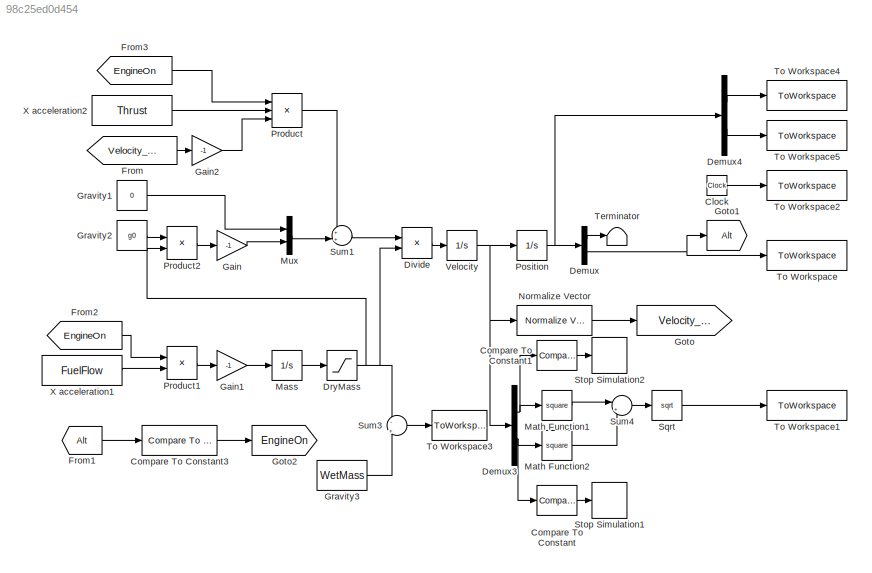
MODEL slx_98c25ed0d454
KIND model
CONFIG AbsTol = auto
CONFIG FixedStep = .1
CONFIG MaxStep = auto
CONFIG MinStep = auto
CONFIG RelTol = 1e-10
CONFIG SampleTimeConstraint = Unconstrained
CONFIG Solver = ode45
CONFIG SolverMode = Auto
CONFIG SolverName = ode45
CONFIG StartTime = 0.0
CONFIG StopTime = 10000
BLOCK [Clock] Clock
BLOCK [Reference] Compare To Constant  REF=simulink/Logic and Bit
Operations/Compare
To Constant
  OutDataTypeStr = boolean
  Ports = [1, 1]
  SourceBlock = simulink/Logic and Bit\nOperations/Compare\nTo Constant
  SourceType = Compare To Constant
  ZeroCross = on
  const = -0.01
  relop = >=
BLOCK [Reference] Compare To Constant1  REF=simulink/Logic and Bit
Operations/Compare
To Constant
  OutDataTypeStr = boolean
  Ports = [1, 1]
  SourceBlock = simulink/Logic and Bit\nOperations/Compare\nTo Constant
  SourceType = Compare To Constant
  ZeroCross = on
  const = 0.01
  relop = <=
BLOCK [Reference] Compare To Constant3  REF=simulink/Logic and Bit
Operations/Compare
To Constant
  OutDataTypeStr = boolean
  Ports = [1, 1]
  SourceBlock = simulink/Logic and Bit\nOperations/Compare\nTo Constant
  SourceType = Compare To Constant
  ZeroCross = on
  const = BurnStart
  relop = <=
BLOCK [Demux] Demux
  DisplayOption = bar
  Outputs = 2
  Ports = [1, 2]
BLOCK [Demux] Demux3
  DisplayOption = bar
  Outputs = 2
  Ports = [1, 2]
BLOCK [Demux] Demux4
  DisplayOption = bar
  Outputs = 2
  Ports = [1, 2]
BLOCK [Product] Divide
  InputSameDT = off
  Inputs = */
  OutDataTypeStr = Inherit: Inherit via internal rule
  Ports = [2, 1]
  RndMeth = Floor
  SaturateOnIntegerOverflow = off
BLOCK [Saturate] DryMass
  InputPortMap = u0
  LowerLimit = DryMass
  Ports = [1, 1]
  UpperLimit = inf
BLOCK [From] From
  GotoTag = Velocity_Vector
BLOCK [From] From1
  GotoTag = Alt
BLOCK [From] From2
  GotoTag = EngineOn
BLOCK [From] From3
  GotoTag = EngineOn
BLOCK [Gain] Gain
  Gain = -1
  OutDataTypeStr = Inherit: Inherit via internal rule
  ParamDataTypeStr = Inherit: Inherit via internal rule
  SaturateOnIntegerOverflow = off
BLOCK [Gain] Gain1
  Gain = -1
  OutDataTypeStr = Inherit: Inherit via internal rule
  ParamDataTypeStr = Inherit: Inherit via internal rule
  SaturateOnIntegerOverflow = off
BLOCK [Gain] Gain2
  Gain = -1
  OutDataTypeStr = Inherit: Inherit via internal rule
  ParamDataTypeStr = Inherit: Inherit via internal rule
  SaturateOnIntegerOverflow = off
BLOCK [Goto] Goto
  GotoTag = Velocity_Vector
BLOCK [Goto] Goto1
  GotoTag = Alt
BLOCK [Goto] Goto2
  GotoTag = EngineOn
BLOCK [Constant] Gravity1
  Value = 0
BLOCK [Constant] Gravity2
  Value = g0
BLOCK [Constant] Gravity3
  Value = WetMass
BLOCK [Integrator] Mass
  InitialCondition = WetMass
  Ports = [1, 1]
BLOCK [Math] Math Function1
  Operator = square
  Ports = [1, 1]
BLOCK [Math] Math Function2
  Operator = square
  Ports = [1, 1]
BLOCK [Mux] Mux
  DisplayOption = bar
  Inputs = 2
  Ports = [2, 1]
BLOCK [Reference] Normalize Vector  REF=vrlib/Utilities/Normalize Vector
  Ports = [1, 1]
  SourceBlock = vrlib/Utilities/Normalize Vector
  SourceType = Normalize Vector
  maxzero = 0
BLOCK [Integrator] Position
  InitialCondition = [0,StartingAlt]
  Ports = [1, 1]
BLOCK [Product] Product
  InputSameDT = off
  Inputs = 3
  OutDataTypeStr = Inherit: Inherit via internal rule
  Ports = [3, 1]
  RndMeth = Floor
  SaturateOnIntegerOverflow = off
BLOCK [Product] Product1
  InputSameDT = off
  OutDataTypeStr = Inherit: Inherit via internal rule
  Ports = [2, 1]
  RndMeth = Floor
  SaturateOnIntegerOverflow = off
BLOCK [Product] Product2
  InputSameDT = off
  OutDataTypeStr = Inherit: Inherit via internal rule
  Ports = [2, 1]
  RndMeth = Floor
  SaturateOnIntegerOverflow = off
BLOCK [Sqrt] Sqrt
BLOCK [Stop] Stop Simulation1
BLOCK [Stop] Stop Simulation2
BLOCK [Sum] Sum1
  IconShape = round
  InputSameDT = off
  Inputs = ++|
  OutDataTypeStr = Inherit: Inherit via internal rule
  Ports = [2, 1]
  SaturateOnIntegerOverflow = off
BLOCK [Sum] Sum3
  IconShape = round
  InputSameDT = off
  Inputs = -|+
  OutDataTypeStr = Inherit: Inherit via internal rule
  Ports = [2, 1]
  SaturateOnIntegerOverflow = off
BLOCK [Sum] Sum4
  IconShape = round
  InputSameDT = off
  Inputs = |++
  OutDataTypeStr = Inherit: Inherit via internal rule
  Ports = [2, 1]
  SaturateOnIntegerOverflow = off
BLOCK [Terminator] Terminator
BLOCK [ToWorkspace] To Workspace
  FixptAsFi = on
  MaxDataPoints = 1
  Ports = [1]
  SampleTime = -1
  Save2DSignal = 3-D array (concatenate along third dimension)
  VariableName = Final_Altitude
BLOCK [ToWorkspace] To Workspace1
  FixptAsFi = on
  MaxDataPoints = 1
  Ports = [1]
  SampleTime = -1
  Save2DSignal = 3-D array (concatenate along third dimension)
  VariableName = Final_Speed
BLOCK [ToWorkspace] To Workspace2
  FixptAsFi = on
  MaxDataPoints = 1
  Ports = [1]
  SampleTime = -1
  Save2DSignal = 3-D array (concatenate along third dimension)
  VariableName = BurnTime
BLOCK [ToWorkspace] To Workspace3
  FixptAsFi = on
  MaxDataPoints = 1
  Ports = [1]
  SampleTime = -1
  Save2DSignal = 3-D array (concatenate along third dimension)
  VariableName = FuelUse
BLOCK [ToWorkspace] To Workspace4
  FixptAsFi = on
  Ports = [1]
  SampleTime = -1
  Save2DSignal = 3-D array (concatenate along third dimension)
  VariableName = X
BLOCK [ToWorkspace] To Workspace5
  FixptAsFi = on
  Ports = [1]
  SampleTime = -1
  Save2DSignal = 3-D array (concatenate along third dimension)
  VariableName = Y
BLOCK [Integrator] Velocity
  InitialCondition = [Starting_X_Speed,Starting_Y_Speed]
  Ports = [1, 1]
BLOCK [Constant] X acceleration1
  Value = FuelFlow
BLOCK [Constant] X acceleration2
  Value = Thrust
LINE Clock:1 -> To Workspace2:1
LINE Compare To Constant1:1 -> Stop Simulation2:1
LINE Compare To Constant3:1 -> Goto2:1
LINE Compare To Constant:1 -> Stop Simulation1:1
NET Demux3:1 -> Compare To Constant1:1, Math Function1:1
NET Demux3:2 -> Compare To Constant:1, Math Function2:1
LINE Demux4:1 -> To Workspace4:1
LINE Demux4:2 -> To Workspace5:1
LINE Demux:1 -> Terminator:1
NET Demux:2 -> Goto1:1, To Workspace:1
LINE Divide:1 -> Velocity:1
NET DryMass:1 -> Divide:2, Product2:2, Sum3:1
LINE From1:1 -> Compare To Constant3:1
LINE From2:1 -> Product1:1
LINE From3:1 -> Product:1
LINE From:1 -> Gain2:1
LINE Gain1:1 -> Mass:1
LINE Gain2:1 -> Product:3
LINE Gain:1 -> Mux:2
LINE Gravity1:1 -> Mux:1
LINE Gravity2:1 -> Product2:1
LINE Gravity3:1 -> Sum3:2
LINE Mass:1 -> DryMass:1
LINE Math Function1:1 -> Sum4:1
LINE Math Function2:1 -> Sum4:2
LINE Mux:1 -> Sum1:2
LINE Normalize Vector:1 -> Goto:1
NET Position:1 -> Demux4:1, Demux:1
LINE Product1:1 -> Gain1:1
LINE Product2:1 -> Gain:1
LINE Product:1 -> Sum1:1
LINE Sqrt:1 -> To Workspace1:1
LINE Sum1:1 -> Divide:1
LINE Sum3:1 -> To Workspace3:1
LINE Sum4:1 -> Sqrt:1
NET Velocity:1 -> Demux3:1, Normalize Vector:1, Position:1
LINE X acceleration1:1 -> Product1:2
LINE X acceleration2:1 -> Product:2
note: NET lines group one-source signal fan-out (src -> all destinations, sorted); 1:1 wires keep LINE
